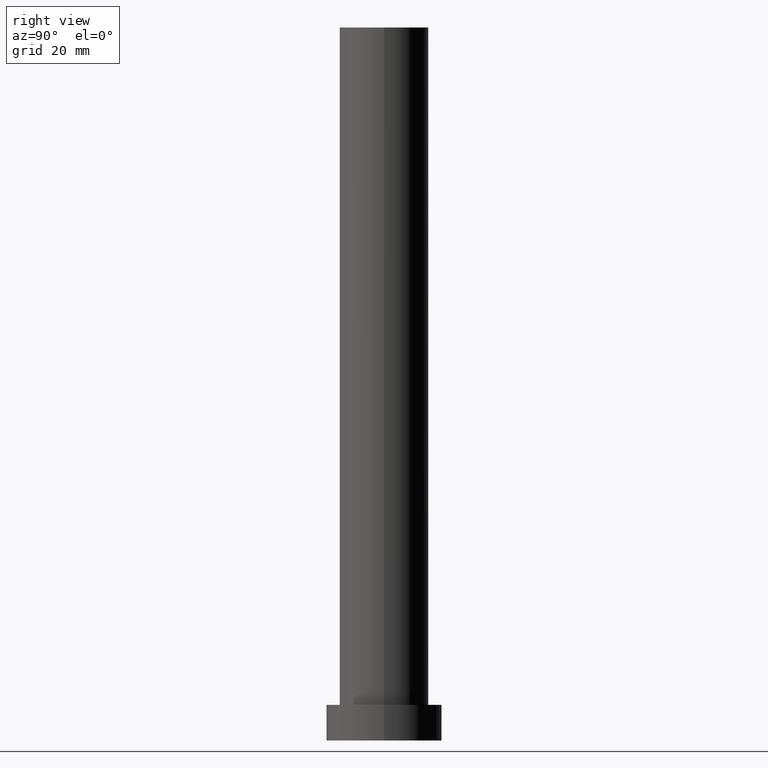
[diagram: clean part render]
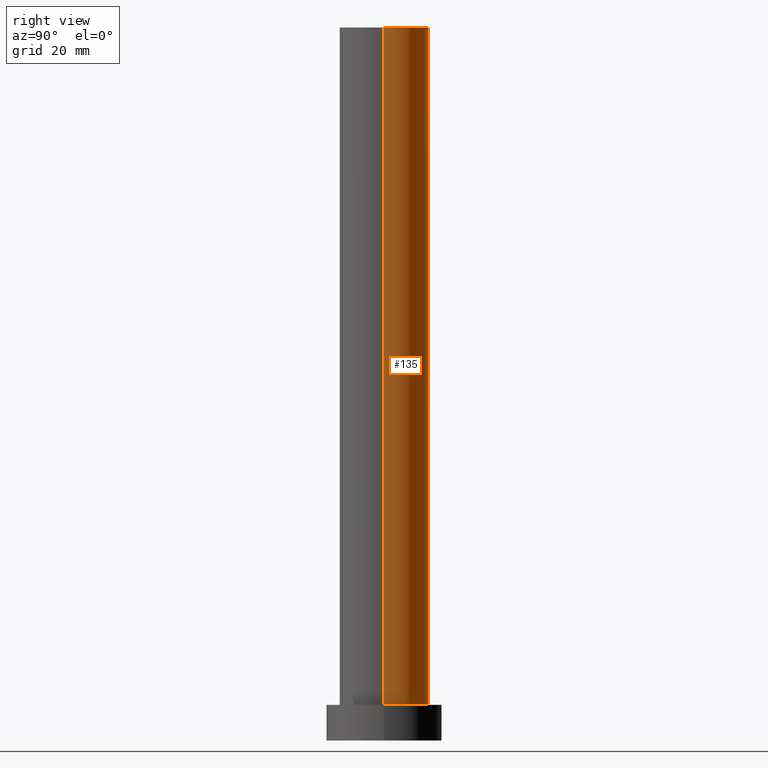
[diagram: same view with one face highlighted and labeled with its STEP entity id]
A machine part, right view. The second image highlights one B-rep face of the part: STEP entity #135.
In plain terms, the highlighted cylindrical surface (partial cylindrical patch) has radius 10 mm, axis along (-0, -0, -1).
Its self-contained STEP definition (entity closure, byte-faithful):
#4 = CARTESIAN_POINT ( 'NONE',  ( 10.00000000000000000, 1.224646799147353256E-15, 8.000000000000000000 ) ) ;
#9 = DIRECTION ( 'NONE',  ( 1.000000000000000000, 0.000000000000000000, 0.000000000000000000 ) ) ;
#30 = FACE_OUTER_BOUND ( 'NONE', #246, .T. ) ;
#43 = CARTESIAN_POINT ( 'NONE',  ( -10.00000000000000000, 0.000000000000000000, 160.0000000000000000 ) ) ;
#62 = CARTESIAN_POINT ( 'NONE',  ( 0.000000000000000000, 0.000000000000000000, 8.000000000000000000 ) ) ;
#64 = DIRECTION ( 'NONE',  ( -0.000000000000000000, -0.000000000000000000, -1.000000000000000000 ) ) ;
#95 = ORIENTED_EDGE ( 'NONE', *, *, #149, .T. ) ;
#101 = CIRCLE ( 'NONE', #243, 10.00000000000000000 ) ;
#102 = DIRECTION ( 'NONE',  ( -0.000000000000000000, -0.000000000000000000, -1.000000000000000000 ) ) ;
#108 = CARTESIAN_POINT ( 'NONE',  ( 0.000000000000000000, 0.000000000000000000, 160.0000000000000000 ) ) ;
#131 = DIRECTION ( 'NONE',  ( 1.000000000000000000, 0.000000000000000000, 0.000000000000000000 ) ) ;
#134 = VERTEX_POINT ( 'NONE', #197 ) ;
#135 = ADVANCED_FACE ( 'NONE', ( #30 ), #200, .T. ) ;
#147 = CARTESIAN_POINT ( 'NONE',  ( 10.00000000000000000, 1.224646799147353256E-15, 160.0000000000000000 ) ) ;
#149 = EDGE_CURVE ( 'NONE', #212, #134, #218, .T. ) ;
#155 = DIRECTION ( 'NONE',  ( -0.000000000000000000, -0.000000000000000000, -1.000000000000000000 ) ) ;
#156 = AXIS2_PLACEMENT_3D ( 'NONE', #62, #187, #131 ) ;
#157 = ORIENTED_EDGE ( 'NONE', *, *, #225, .T. ) ;
#163 = VECTOR ( 'NONE', #64, 1000.000000000000000 ) ;
#167 = AXIS2_PLACEMENT_3D ( 'NONE', #108, #155, #231 ) ;
#175 = VERTEX_POINT ( 'NONE', #147 ) ;
#185 = EDGE_CURVE ( 'NONE', #175, #214, #101, .T. ) ;
#187 = DIRECTION ( 'NONE',  ( 0.000000000000000000, 0.000000000000000000, 1.000000000000000000 ) ) ;
#190 = CARTESIAN_POINT ( 'NONE',  ( -10.00000000000000000, 0.000000000000000000, 160.0000000000000000 ) ) ;
#197 = CARTESIAN_POINT ( 'NONE',  ( -10.00000000000000000, 0.000000000000000000, 8.000000000000000000 ) ) ;
#200 = CYLINDRICAL_SURFACE ( 'NONE', #167, 10.00000000000000000 ) ;
#210 = LINE ( 'NONE', #43, #232 ) ;
#212 = VERTEX_POINT ( 'NONE', #4 ) ;
#214 = VERTEX_POINT ( 'NONE', #190 ) ;
#218 = CIRCLE ( 'NONE', #156, 10.00000000000000000 ) ;
#219 = EDGE_CURVE ( 'NONE', #214, #134, #210, .T. ) ;
#220 = CARTESIAN_POINT ( 'NONE',  ( 0.000000000000000000, 0.000000000000000000, 160.0000000000000000 ) ) ;
#225 = EDGE_CURVE ( 'NONE', #175, #212, #238, .T. ) ;
#231 = DIRECTION ( 'NONE',  ( -1.000000000000000000, 0.000000000000000000, 0.000000000000000000 ) ) ;
#232 = VECTOR ( 'NONE', #102, 1000.000000000000000 ) ;
#238 = LINE ( 'NONE', #239, #163 ) ;
#239 = CARTESIAN_POINT ( 'NONE',  ( 10.00000000000000000, 1.224646799147353256E-15, 160.0000000000000000 ) ) ;
#241 = DIRECTION ( 'NONE',  ( 0.000000000000000000, 0.000000000000000000, 1.000000000000000000 ) ) ;
#243 = AXIS2_PLACEMENT_3D ( 'NONE', #220, #241, #9 ) ;
#244 = ORIENTED_EDGE ( 'NONE', *, *, #219, .F. ) ;
#245 = ORIENTED_EDGE ( 'NONE', *, *, #185, .F. ) ;
#246 = EDGE_LOOP ( 'NONE', ( #245, #157, #95, #244 ) ) ;